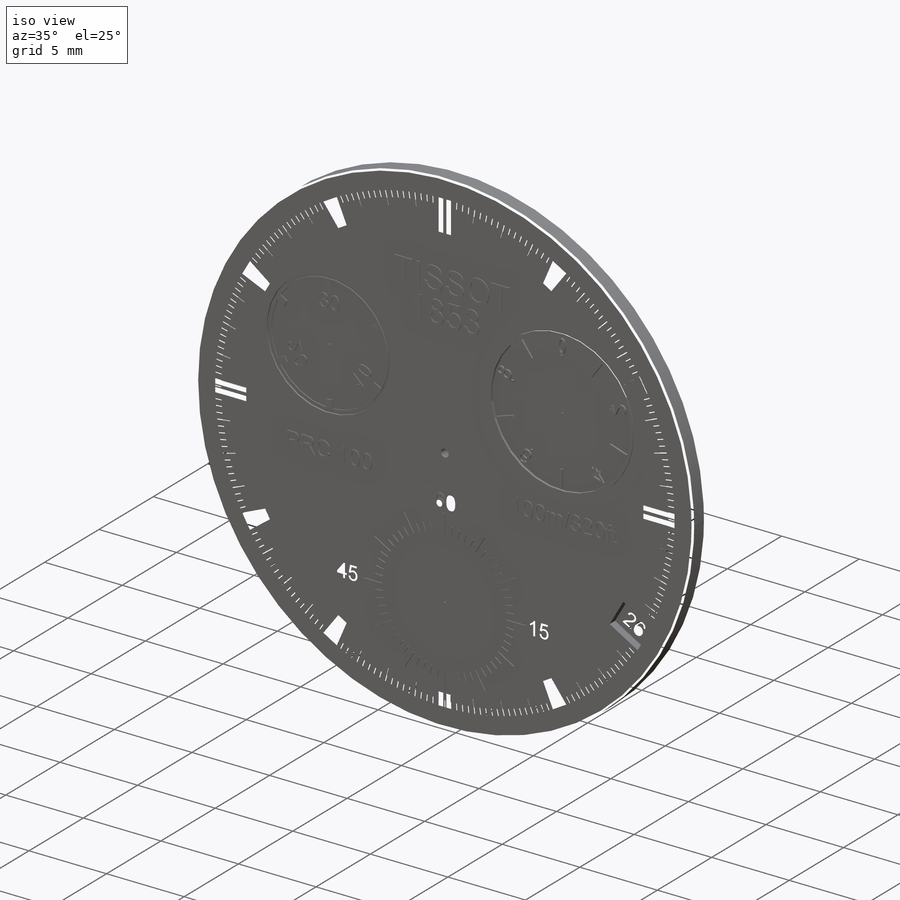
[diagram: iso view]
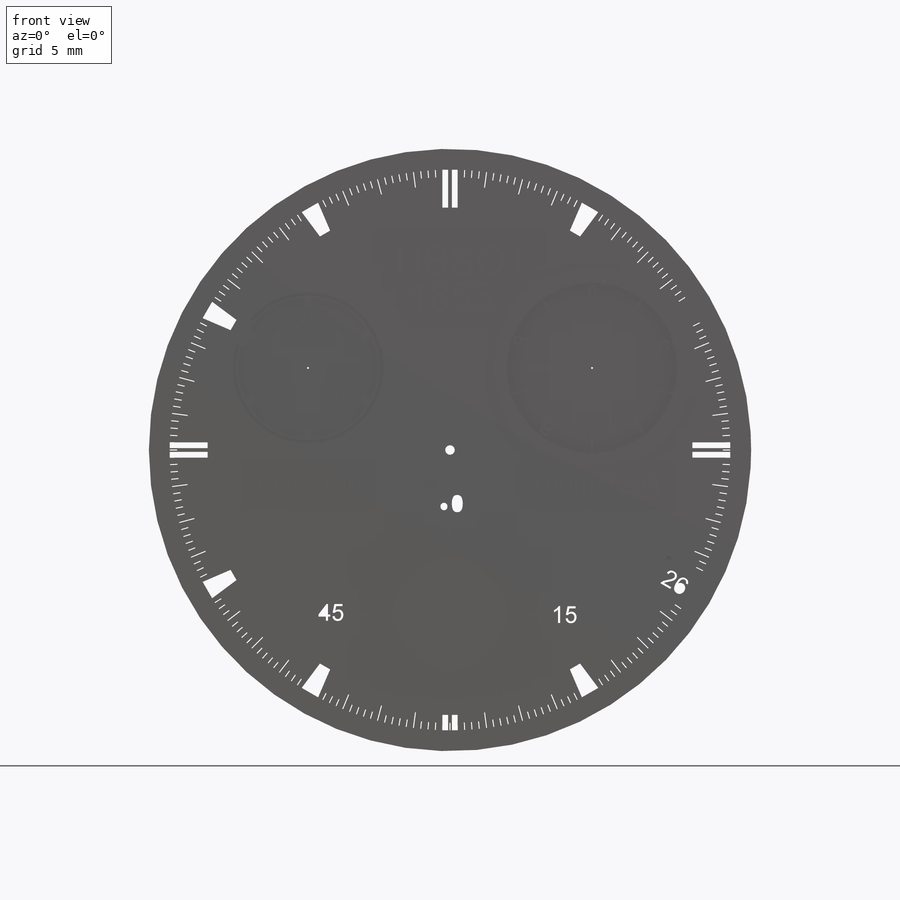
[diagram: front view]
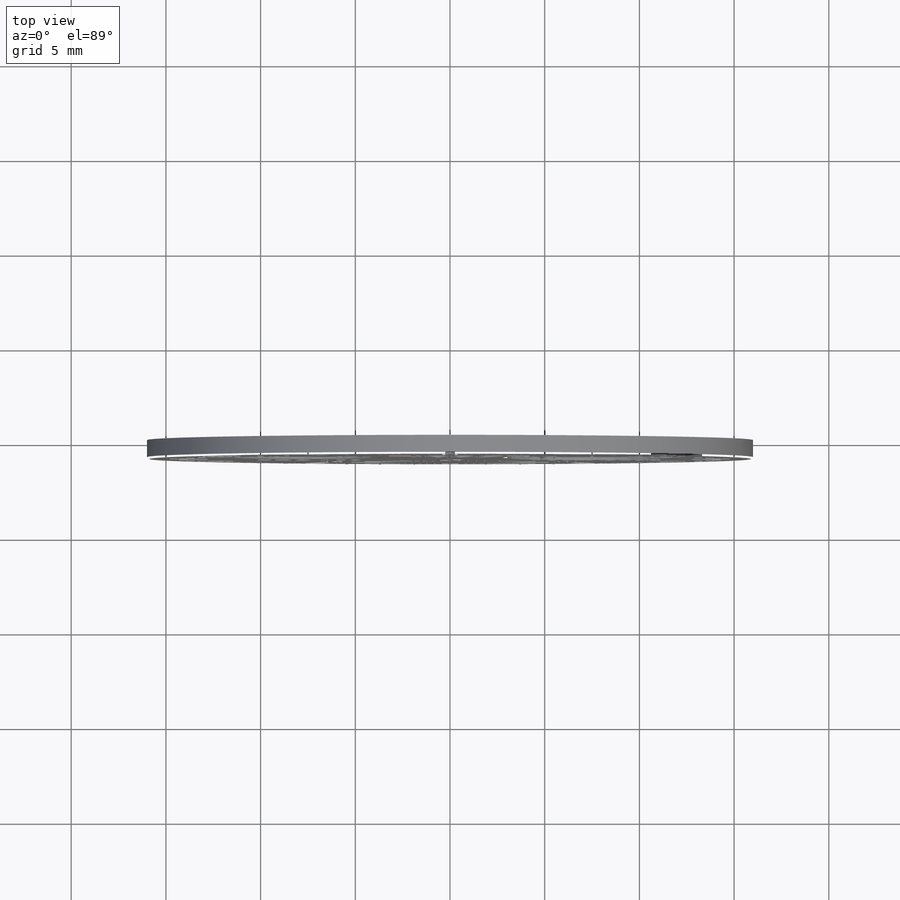
[diagram: top view]
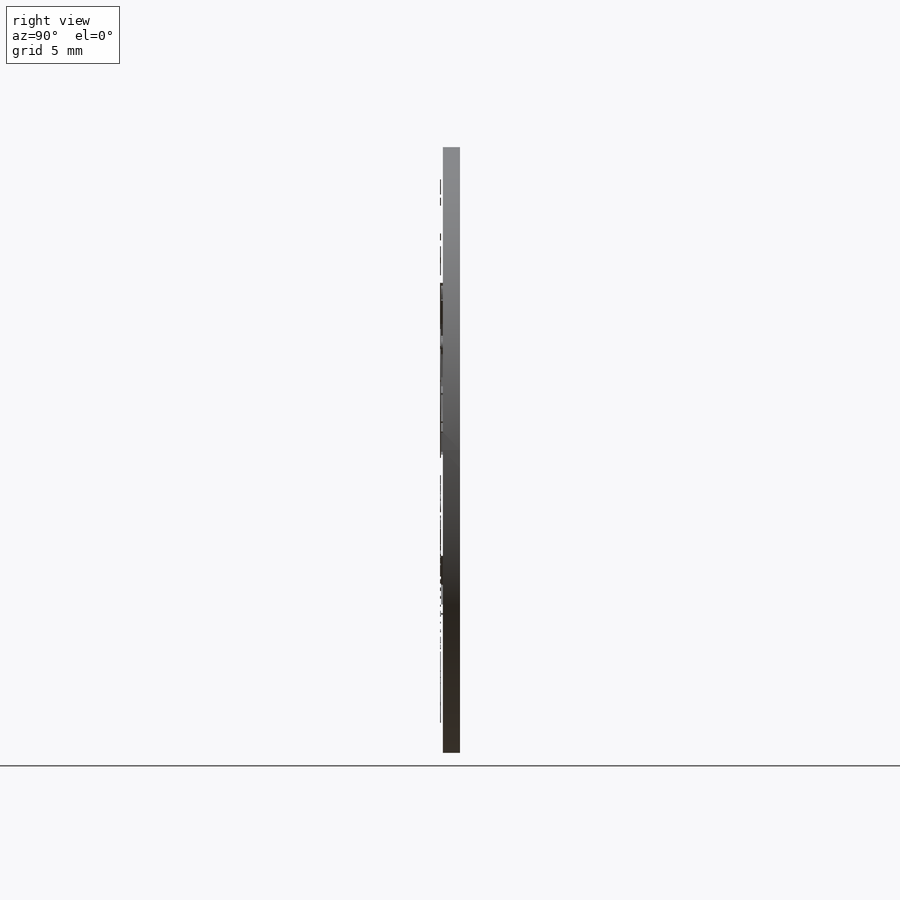
[diagram: right view]
SOLIDWORKS PART (.sldprt)
format: sldprt  version: not decoded by parser v0  size: 4,247,552 bytes
history: native  units: mm
features: sketch x35, extrude x18, cut_extrude x14, pattern_circular x8, material x1, chamfer x1 (+11 scaffold rows collapsed)
feature tree (88):
  scaffold x11  (default folders/planes/origin — collapsed)
  material  "Material <not specified>"
  sketch  "Sketch1"  dims[D1=32.0mm]
  extrude  "Boss-Extrude1"  Depth=1mm
  sketch  "Sketch2"  dims[D1=0.5mm]
  cut_extrude  "Cut-Extrude1"  [1 undecoded]
  sketch  "Sketch4"  dims[D1=29.6mm]
  sketch  "Sketch6"  dims[D2=8.0mm D3=9.0mm D4=0.1mm D5=32.0mm D1=15.0mm]
  cut_extrude  "Cut-Extrude2"  Depth=0.1mm
  sketch  "Sketch7"  dims[D1=0.1mm D2=0.1mm]
  cut_extrude  "Cut-Extrude3"  [1 undecoded]
  sketch  "Sketch8"  dims[D1=0.1mm D2=4.55mm]
  sketch  "Sketch10"  dims[D1=0.3mm D2=0.3mm D3=0.2mm D4=2.0mm D5=2.0mm]
  extrude  "Boss-Extrude2"  Depth=0.1mm
  pattern_circular  "CirPattern1"  Count=10 Angle=36deg
  sketch  "Sketch13"  dims[D1=0.1mm D2=0.1mm D3=0.1mm D4=0.1mm D5=0.1mm]
  cut_extrude  "Cut-Extrude4"  Depth=0.1mm
  sketch  "Sketch14"
  extrude  "Boss-Extrude3"  Depth=0.1mm
  sketch  "Sketch15"  dims[D1=9.5mm]
  extrude  "Boss-Extrude4"  Depth=0.05mm
  sketch  "Sketch16"  dims[D1=0.1mm]
  extrude  "Boss-Extrude5"  Depth=0.05mm
  sketch  "Sketch17"
  extrude  "Boss-Extrude6"  Depth=0.05mm
  pattern_circular  "CirPattern2"  Count=6 Angle=60deg
  sketch  "Sketch18"
  extrude  "Boss-Extrude7"  Depth=0.05mm
  sketch  "Sketch19"
  extrude  "Boss-Extrude8"  Depth=0.05mm
  sketch  "Sketch20"
  extrude  "Boss-Extrude9"  Depth=0.05mm
  sketch  "Sketch21"
  extrude  "Boss-Extrude10"  Depth=0.05mm
  sketch  "Sketch22"  dims[D1=8.0mm D2=1.2mm D3=0.05mm]
  extrude  "Boss-Extrude11"  Depth=0.05mm
  pattern_circular  "CirPattern3"  Count=60 Angle=6deg
  sketch  "Sketch23"  dims[D1=0.5mm]
  cut_extrude  "Cut-Extrude5"  Depth=0.05mm
  pattern_circular  "CirPattern4"  Count=12 Angle=30deg
  sketch  "Sketch24"
  extrude  "Boss-Extrude12"  Depth=0.05mm
  extrude  "Boss-Extrude13"  Depth=0.05mm
  sketch  "Sketch26"  dims[c1.D3=14.8mm c1.D1=~18.595423mm c2.D1=60.0deg c2.D2=0.75mm c2.D3=1.3mm c2.D4=~0.342384mm c3.D2=~16.126859mm c4.D2=30.0deg c4.D3=1.0mm c4.D4=1.0mm]
  extrude  "Boss-Extrude14"  Depth=0.05mm
  pattern_circular  "CirPattern7"  Count=11 Angle=30deg
  sketch  "Sketch27"
  cut_extrude  "Cut-Extrude7"  Depth=0.05mm
  sketch  "Sketch28"  dims[D1=1.2mm]
  cut_extrude  "Cut-Extrude8"  Depth=0.05mm
  sketch  "Sketch29"
  cut_extrude  "Cut-Extrude9"  Depth=0.05mm
  sketch  "Sketch30"
  cut_extrude  "Cut-Extrude10"  Depth=0.05mm
  sketch  "Sketch31"
  cut_extrude  "Cut-Extrude11"  Depth=0.05mm
  pattern_circular  "CirPattern8"  Count=11 Angle=90deg
  sketch  "Sketch32"
  cut_extrude  "Cut-Extrude12"  Depth=0.05mm
  sketch  "Sketch33"  dims[c1.D1=14.8mm c2.D1=30.0deg c2.D2=~17.409611mm c3.D2=7.5deg c3.D3=~16.898347mm c4.D3=10.0deg c5.D3=~16.898347mm c6.D3=7.5deg c6.D4=~7.267176mm c7.D4=7.5deg]
  sketch  "Sketch34"  dims[D1=0.05mm]
  extrude  "Boss-Extrude15"  Depth=0.05mm
  pattern_circular  "CirPattern9"  Count=48 Angle=7.5deg
  sketch  "Sketch35"
  cut_extrude  "Cut-Extrude13"  Depth=0.05mm
  sketch  "Sketch36"  dims[c1.D1=~13.854574mm c2.D1=7.5deg c3.D1=~18.194997mm c4.D1=1.875deg c5.D1=~13.974124mm c6.D1=1.5deg c6.D2=~18.623336mm c7.D2=1.5deg c7.D3=~18.651865mm c8.D3=1.5deg]
  sketch  "Sketch39"  dims[D1=0.05mm]
  extrude  "Boss-Extrude16"  Depth=0.05mm
  pattern_circular  "CirPattern10"  Count=237 Angle=1.5deg
  sketch  "Sketch40"
  cut_extrude  "Cut-Extrude14"  Depth=1.05mm
  chamfer  "Chamfer1"  Distance=0.1mm Angle=45deg
  sketch  "Sketch41"
  cut_extrude  "Cut-Extrude15"  Depth=0.5mm
  sketch  "Sketch42"
  extrude  "Boss-Extrude17"  Depth=0.2mm
  sketch  "Sketch43"
  extrude  "Boss-Extrude18"  Depth=0.1mm
decode coverage: 57 of 76 modeling features carry decoded parameters
note: ~ marks probable driven/reference dimensions
note: 2 parameter values undecoded
note: suppression state not decoded; provenance and decode notes live in map.json
